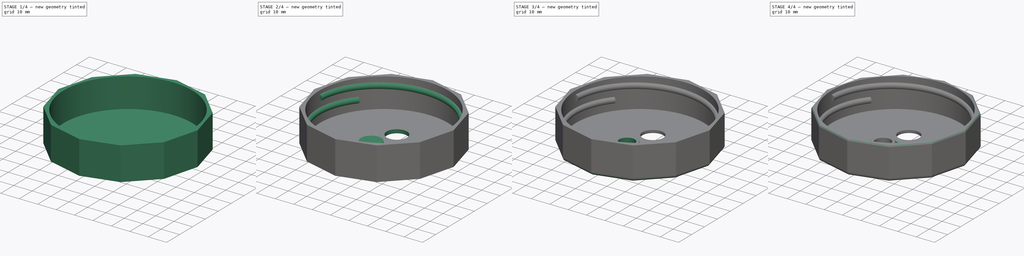
[diagram: build sequence overview — one tinted view per stage of 4, left to right]
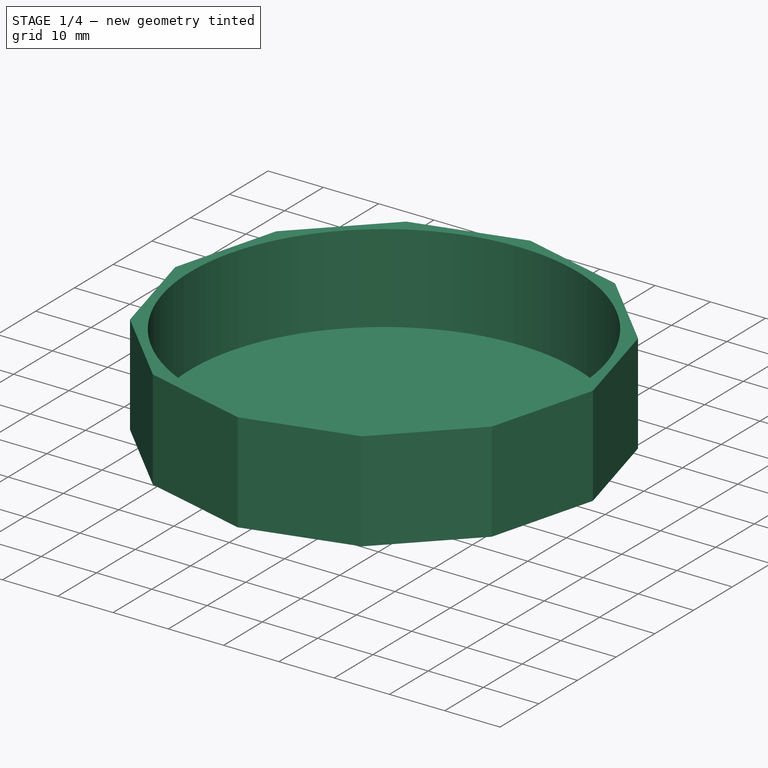
[diagram: stage 1 of 4 — iso view after this stage's code; geometry added in this stage tinted green]
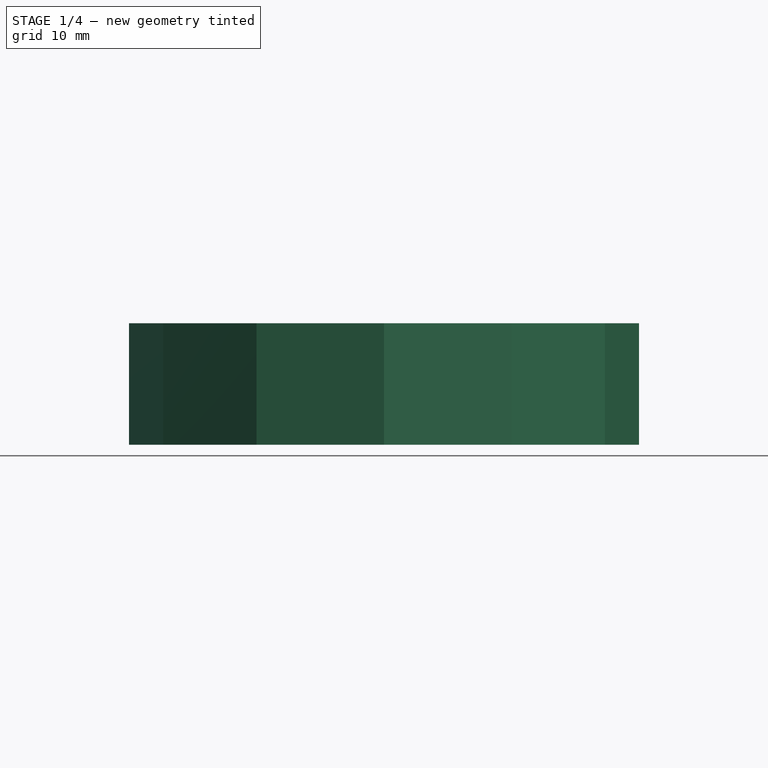
[diagram: stage 1 of 4 — front view after this stage's code; geometry added in this stage tinted green]
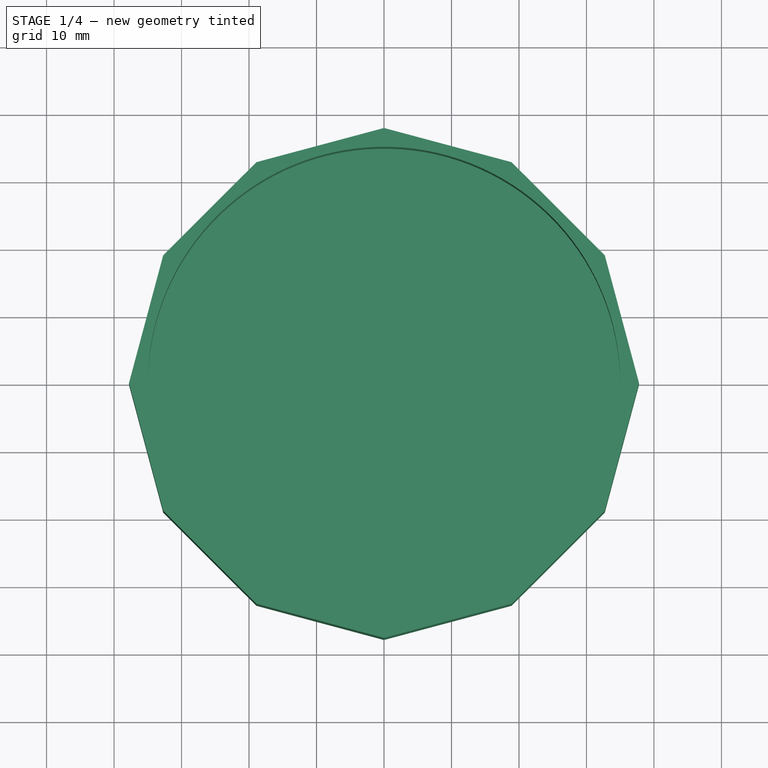
[diagram: stage 1 of 4 — top view after this stage's code; geometry added in this stage tinted green]
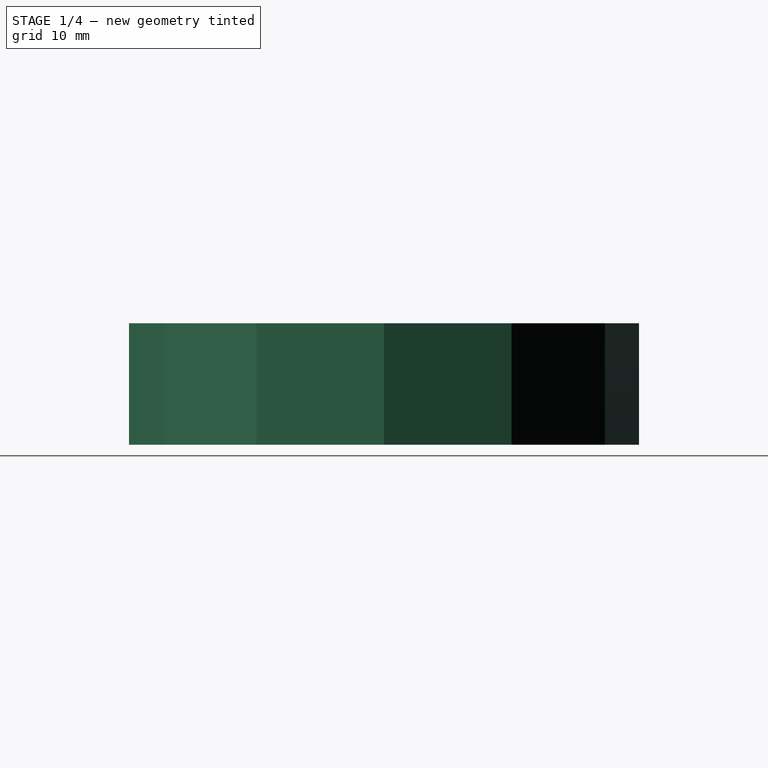
[diagram: stage 1 of 4 — right view after this stage's code; geometry added in this stage tinted green]
FCSTD DOCUMENT  (FreeCAD 2023.131R26244 +5365 (Git))
Label: Mason Jar Culture Lid - Threaded
License: All rights reserved
LicenseURL: http://en.wikipedia.org/wiki/All_rights_reserved
objects: Sketcher::SketchObject×6, PartDesign::Fillet×3, Spreadsheet::Sheet×2, PartDesign::Pad×2, PartDesign::Pocket×2, PartDesign::Hole×1, PartDesign::AdditiveHelix×1, PartDesign::Chamfer×1, PartDesign::Body×1
note: 43 computed .brp shape members not serialized (recipe doc carries the construction recipe); baked Part::Feature solids carry a one-line shape summary decoded from their .brp

FEATURE [Spreadsheet::Sheet] Spreadsheet  label="Parameters"
  PythonMode = false
  ShowCells = 0
  TreeRank = 1
  cells = A2=Ring Inner Diameter; B2(Ring_Inner_Diameter)=70; C2=Should be large enough to fit over the threads on the glass jar.; A3=Ring Min Thickness; B3(Ring_Min_Thickness)=1.5; C3=The thickness of the thinnest part of the ring.; A4=Ring Side Height; B4(Ring_Side_Height)=16; C4=How much material will screw onto the jar.; A5=Ring Top Height; B5(Ring_Top_Height)=2; C5=How thick the lid is on top of the jar.; A7=Thread Pitch; B7(Thread_Pitch)=6.5; C7=The thread pitch.; A8=Thread Width; B8(Thread_Width)=3; C8=The distance between two thread on the jar.; A9=Thread Height; B9(Thread_Height)=3; C9=The height of the threads from the inner survace of the lid.; A10=Thread Offset; B10(Thread_Offset)=2; C10=Distance from the bottom of the ring where the threads start.; A11=Thread Turns; B11(Thread_Turns)=1.1; C11=The number of turns inside the ring.; A13=Hole Fillet; B13(Hole_Fillet)=0.5; A14=Top Fillet; B14(Top_Fillet)=2; A15=Bottom Fillet; B15(Bottom_Fillet)=1; B17=Diameter; C17=Offset; A18=Injection Port Hole Diameter; B18(Injection_Port_Diameter)=11; C18(Injection_Port_Offset)=10; A19=Luer Bulkhead Diameter; B19(Luer_Port_Diameter)=8; C19(Luer_Port_Offset)=10; A21=Bulkhead Geometry; A22=Shaft Length; B22(luer_bulkhead_length)=8.51; A24=Luer Lock Geometry; A25=Center Post Outer Diameter; B25(luer_post_outer_diameter)=3.976; A26=Center Post Inner Diameter; B26(luer_post_inner_diameter)=2.95; A27=Center Post Height; B27(luer_post_height)=6.75; A28=Recess Well Diameter; B28(luer_recess_diameter)=7.9; A29=Recess Well Wall Thickness; B29(luer_recess_thickness)=1.25; A30=Recess Well Height; B30(luer_recess_height)=7.4; A31=Thread Angle; B31(luer_thread_angle)=25; A32=Thread Height; B32(luer_thread_height)=1; A33=Thread Depth; B33(luer_thread_depth)=0.45; A34=Thread Pitch; B34(luer_thread_pitch)=2.5
FEATURE [Sketcher::SketchObject] Sketch
  ArcFitTolerance = 1e-06
  AttachmentSupport = -> [XY_Plane]
  ExternalBSplineMaxDegree = 5
  ExternalBSplineTolerance = 0.0001
  FullyConstrained = true
  InternalTolerance = 1e-06
  InvalidShape = false
  MakeInternals = false
  MapMode = 5
  Support = -> [XY_Plane]
  TreeRank = 14
  ValidateShape = true
  expr: Constraints[37] = <<Parameters>>.Ring_Inner_Diameter + <<Parameters>>.Ring_Min_Thickness * 2
  sketch-geometry (14):
    g0: LineSegment StartX=-32.725 StartY=18.8938 StartZ=0 EndX=-37.7876 EndY=0 EndZ=0
    g1: LineSegment StartX=-37.7876 StartY=0 StartZ=0 EndX=-32.725 EndY=-18.8938 EndZ=0
    g2: LineSegment StartX=-32.725 StartY=-18.8938 StartZ=0 EndX=-18.8938 EndY=-32.725 EndZ=0
    g3: LineSegment StartX=-18.8938 StartY=-32.725 StartZ=0 EndX=3.6e-15 EndY=-37.7876 EndZ=0
    g4: LineSegment StartX=3e-15 StartY=-37.7876 StartZ=0 EndX=18.8938 EndY=-32.725 EndZ=0
    g5: LineSegment StartX=18.8938 StartY=-32.725 StartZ=0 EndX=32.725 EndY=-18.8938 EndZ=0
    g6: LineSegment StartX=32.725 StartY=-18.8938 StartZ=0 EndX=37.7876 EndY=3.6e-15 EndZ=0
    g7: LineSegment StartX=37.7876 StartY=2.3e-15 StartZ=0 EndX=32.725 EndY=18.8938 EndZ=0
    g8: LineSegment StartX=32.725 StartY=18.8938 StartZ=0 EndX=18.8938 EndY=32.725 EndZ=0
    g9: LineSegment StartX=18.8938 StartY=32.725 StartZ=0 EndX=0 EndY=37.7876 EndZ=0
    g10: LineSegment StartX=-6e-16 StartY=37.7876 StartZ=0 EndX=-18.8938 EndY=32.725 EndZ=0
    g11: LineSegment StartX=-18.8938 StartY=32.725 StartZ=0 EndX=-32.725 EndY=18.8938 EndZ=0
    g12: Circle [constr] CenterX=0 CenterY=0 CenterZ=0 NormalX=0 NormalY=0 NormalZ=1 AngleXU=0 Radius=37.7876
    g13: Circle [constr] CenterX=0 CenterY=0 CenterZ=0 NormalX=0 NormalY=0 NormalZ=1 AngleXU=0 Radius=36.5
  constraints (30):
    c: Coincident(g0,g1)
    c: Coincident(g1,g2)
    c: Coincident(g2,g3)
    c: Coincident(g3,g4)
    c: Coincident(g4,g5)
    c: Coincident(g5,g6)
    c: Coincident(g6,g7)
    c: Coincident(g7,g8)
    c: Coincident(g8,g9)
    c: Coincident(g9,g10)
    c: Coincident(g10,g11)
    c: Coincident(g11,g0)
    c: Equal(g0, g1-g11) x11
    c: PointOnObject(g0,g12)
    c: PointOnObject(g1,g12)
    c: PointOnObject(g2,g12)
    c: PointOnObject(g3,g12)
    c: PointOnObject(g4,g12)
    c: PointOnObject(g5,g12)
    c: PointOnObject(g6,g12)
    c: PointOnObject(g7,g12)
    c: PointOnObject(g8,g12)
    c: PointOnObject(g9,g12)
    c: PointOnObject(g10,g12)
    c: PointOnObject(g11,g12)
    c: Coincident(g12,g-1)
    c: Coincident(g13,g12)
    c: Diameter(g13) = 73
    c: Tangent(g13,g9)
    c: PointOnObject(g0,g-1)
FEATURE [PartDesign::Pad] Pad  label="Lid"
  AddSubType = 0
  AlongSketchNormal = false
  AutoTaperInnerAngle = true
  CheckUpToFaceLimits = true
  ClaimChildren = false
  Direction = (0,0,1)
  Fit = 0
  FitJoin = 0
  InnerFit = 0
  InnerFitJoin = 0
  InvalidShape = false
  Length = 18
  Length2 = 100
  Linearize = true
  NewSolid = false
  Profile = -> Sketch
  Suppress = false
  TaperInnerAngle = 0
  TaperInnerAngleRev = 0
  TreeRank = 15
  Type = 0
  ValidateShape = true
  _ProfileBasedVersion = 1
  expr: Length = <<Parameters>>.Ring_Side_Height + <<Parameters>>.Ring_Top_Height
FEATURE [Sketcher::SketchObject] Sketch001  label="Hole"
  ArcFitTolerance = 1e-06
  AttachmentSupport = -> [Pad]
  ExternalBSplineMaxDegree = 5
  ExternalBSplineTolerance = 0.0001
  FullyConstrained = true
  InternalTolerance = 1e-06
  InvalidShape = false
  MakeInternals = false
  MapMode = 5
  Placement = pos=(0,0,18) rot=(0,0,1;0rad)
  Support = -> [Pad]
  TreeRank = 16
  ValidateShape = true
  expr: Constraints[1] = <<Parameters>>.Ring_Inner_Diameter
  sketch-geometry (1):
    g0: Circle CenterX=0 CenterY=0 CenterZ=0 NormalX=0 NormalY=0 NormalZ=1 AngleXU=0 Radius=35
  constraints (2):
    c: Coincident(g0,g-1)
    c: Diameter(g0) = 70
FEATURE [PartDesign::Hole] Hole  label="Bottle Opening"
  AddSubType = 1
  BaseFeature = -> Pad
  ClaimChildren = false
  CustomThreadClearance = 0
  Depth = 16
  DepthType = 0
  Diameter = 70
  DrillForDepth = false
  DrillPoint = 0
  DrillPointAngle = 118
  Fit = 0
  FitJoin = 0
  HoleCutCountersinkAngle = 90
  HoleCutCustomValues = false
  HoleCutDepth = 0
  HoleCutDiameter = 6.1
  HoleCutType = 0
  InnerFit = 0
  InnerFitJoin = 0
  InvalidShape = false
  Linearize = true
  ModelThread = false
  NewSolid = false
  Profile = -> Sketch001
  Suppress = false
  Tapered = false
  TaperedAngle = 90
  ThreadClass = 0
  ThreadDepth = 16
  ThreadDepthType = 0
  ThreadDirection = 0
  ThreadFit = 0
  ThreadSize = 0
  ThreadType = 0
  Threaded = false
  TreeRank = 17
  UseCustomThreadClearance = false
  ValidateShape = true
  _ProfileBasedVersion = 1
  expr: Depth = <<Parameters>>.Ring_Side_Height
  expr: Diameter = <<Parameters>>.Ring_Inner_Diameter
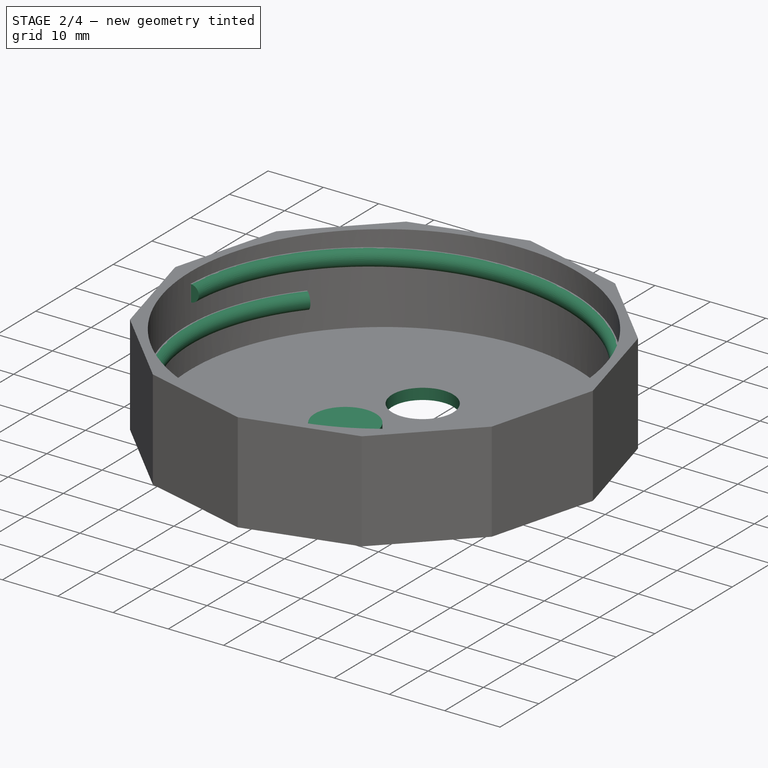
[diagram: stage 2 of 4 — iso view after this stage's code; geometry added in this stage tinted green]
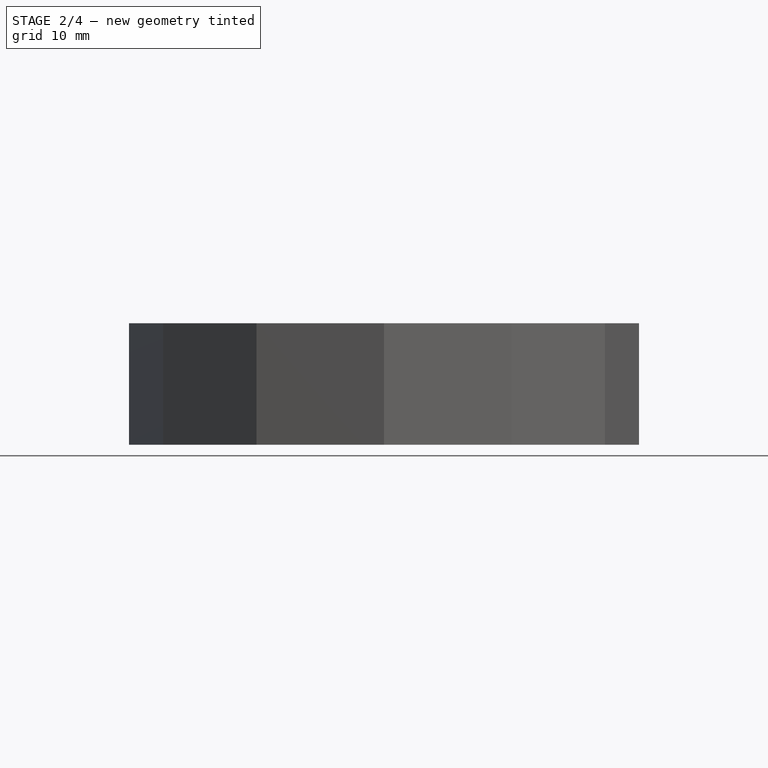
[diagram: stage 2 of 4 — front view after this stage's code; geometry added in this stage tinted green]
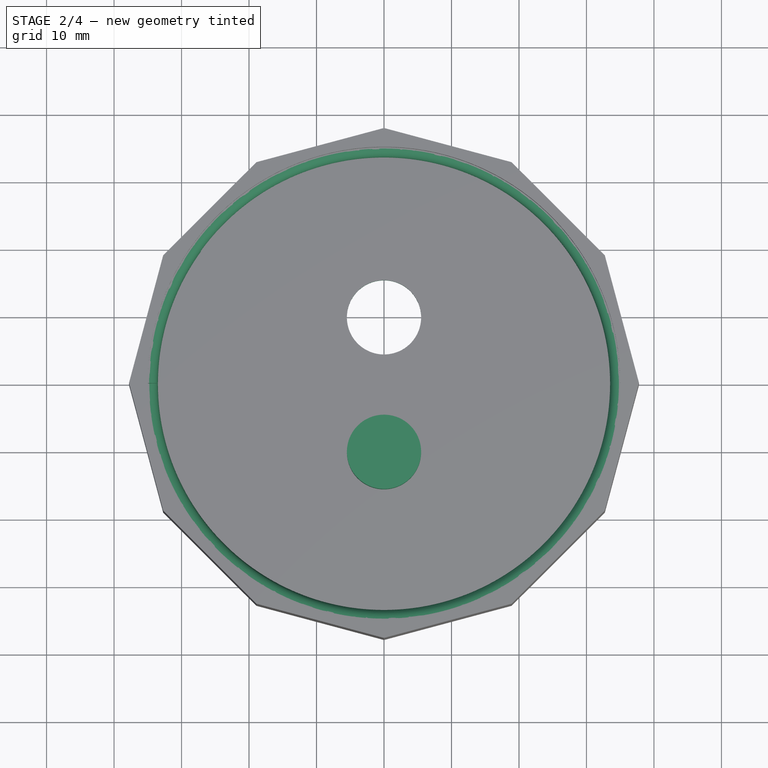
[diagram: stage 2 of 4 — top view after this stage's code; geometry added in this stage tinted green]
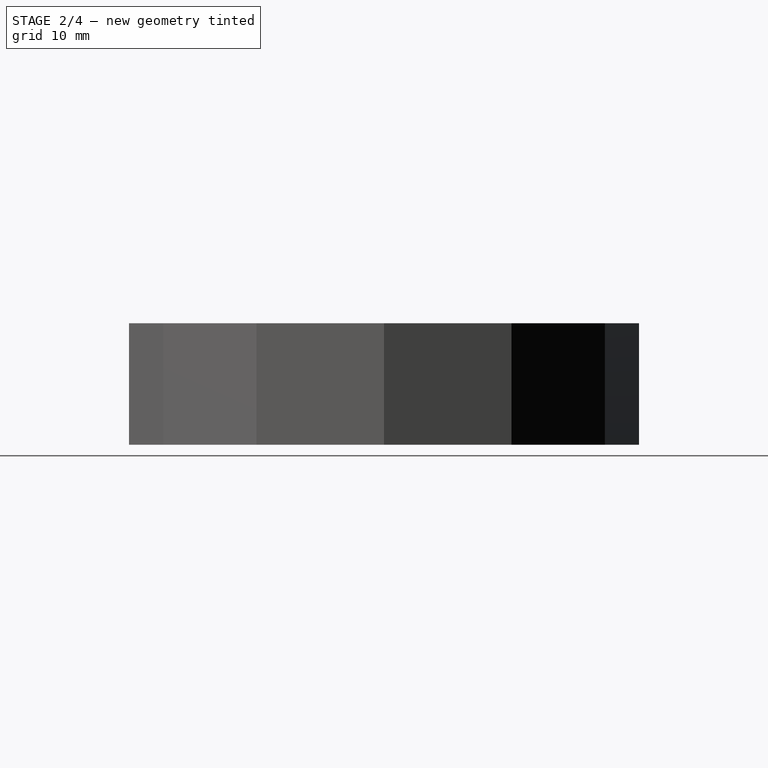
[diagram: stage 2 of 4 — right view after this stage's code; geometry added in this stage tinted green]
FEATURE [Sketcher::SketchObject] Sketch002  label="Thread Profile"
  ArcFitTolerance = 1e-06
  AttachmentSupport = -> [XZ_Plane]
  ExternalBSplineMaxDegree = 5
  ExternalBSplineTolerance = 0.0001
  FullyConstrained = true
  InternalTolerance = 1e-06
  InvalidShape = false
  MakeInternals = false
  MapMode = 5
  Placement = pos=(0,0,0) rot=(1,0,0;1.5708rad)
  Support = -> [XZ_Plane]
  TreeRank = 18
  ValidateShape = true
  expr: Constraints[1] = <<Parameters>>.Thread_Width
  expr: Constraints[2] = <<Parameters>>.Ring_Side_Height + <<Parameters>>.Ring_Top_Height - <<Parameters>>.Thread_Offset
  expr: Constraints[3] = <<Parameters>>.Ring_Inner_Diameter / 2
  expr: Constraints[6] = <<Parameters>>.Thread_Width
  sketch-geometry (2):
    g0: LineSegment StartX=-35 StartY=13 StartZ=0 EndX=-35 EndY=16 EndZ=0
    g1: ArcOfCircle CenterX=-35 CenterY=14.5 CenterZ=0 NormalX=0 NormalY=0 NormalZ=1 AngleXU=0 Radius=1.5 StartAngle=4.71238 EndAngle=7.85399
  constraints (7):
    c: Vertical(g0)
    c: Distance(g0,g0) = 3
    c: DistanceY(g-1,g0) = 16
    c: DistanceX(g0,g-1) = 35
    c: Coincident(g1,g0)
    c: Coincident(g1,g0)
    c: Diameter(g1) = 3
FEATURE [PartDesign::AdditiveHelix] Helix  label="Threads"
  AddSubType = 0
  Angle = 0
  Axis = (0,-2e-16,1)
  Base = (0,0,0)
  BaseFeature = -> Hole
  ClaimChildren = false
  Fit = 0
  FitJoin = 0
  Growth = 0
  HasBeenEdited = true
  Height = 7.15
  InnerFit = 0
  InnerFitJoin = 0
  InvalidShape = false
  LeftHanded = false
  Linearize = true
  Mode = 1
  NewSolid = false
  Outside = false
  Pitch = 6.5
  Profile = -> Sketch002
  ReferenceAxis = -> Sketch002 [V_Axis]
  Reversed = true
  Suppress = false
  TreeRank = 19
  Turns = 1.1
  ValidateShape = true
  _ProfileBasedVersion = 1
  expr: Pitch = <<Parameters>>.Thread_Pitch
  expr: Turns = <<Parameters>>.Thread_Turns
FEATURE [Spreadsheet::Sheet] Spreadsheet001  label="Bootle Specs"
  PythonMode = false
  ShowCells = 0
  TreeRank = 2
  cells = B2=Inner Ring Diameter; C2=Ring Side Height; D2=Thread Pitch; E2=Thread Width; A3=Large Mouth Mason Jar; B3=87; C3=16; D3=6.5; E3=3; A4=Narrow Mouth Mason Jar; B4=70; C4=16; D4=6.5; E4=3; A5=24oz Prego Jar; B5=62.25; C5=10.5; D5=3; E5=1
FEATURE [Sketcher::SketchObject] Sketch003
  ArcFitTolerance = 1e-06
  AttachmentSupport = -> [XY_Plane]
  ExternalBSplineMaxDegree = 5
  ExternalBSplineTolerance = 0.0001
  FullyConstrained = true
  InternalTolerance = 1e-06
  InvalidShape = false
  MakeInternals = false
  MapMode = 5
  Support = -> [XY_Plane]
  TreeRank = 21
  ValidateShape = true
  expr: Constraints[1] = <<Parameters>>.Injection_Port_Diameter
  expr: Constraints[2] = <<Parameters>>.Injection_Port_Offset
  sketch-geometry (1):
    g0: Circle CenterX=0 CenterY=10 CenterZ=0 NormalX=0 NormalY=0 NormalZ=1 AngleXU=0 Radius=5.5
  constraints (3):
    c: PointOnObject(g0,g-2)
    c: Diameter(g0) = 11
    c: DistanceY(g-1,g0) = 10
FEATURE [PartDesign::Pocket] Pocket  label="Injection Port Hole"
  AddSubType = 1
  AutoTaperInnerAngle = true
  BaseFeature = -> Helix
  CheckUpToFaceLimits = true
  ClaimChildren = false
  Fit = 0
  FitJoin = 0
  InnerFit = 0
  InnerFitJoin = 0
  InvalidShape = false
  Length = 100
  Length2 = 100
  Linearize = true
  NewSolid = false
  Profile = -> Sketch003
  Suppress = false
  TaperInnerAngle = 0
  TaperInnerAngleRev = 0
  TreeRank = 22
  Type = 4
  ValidateShape = true
  _ProfileBasedVersion = 1
  _Version = 1
FEATURE [Sketcher::SketchObject] Sketch010
  ArcFitTolerance = 1e-06
  AttachmentSupport = -> [XY_Plane]
  ExternalBSplineMaxDegree = 5
  ExternalBSplineTolerance = 0.0001
  FullyConstrained = true
  InternalTolerance = 1e-06
  InvalidShape = false
  MakeInternals = false
  MapMode = 5
  Support = -> [XY_Plane]
  TreeRank = 47
  ValidateShape = true
  expr: Constraints[1] = <<Parameters>>.Luer_Port_Offset
  expr: Constraints[2] = <<Parameters>>.Ring_Min_Thickness * 2 + <<Parameters>>.Luer_Port_Diameter
  sketch-geometry (1):
    g0: Circle CenterX=0 CenterY=-10 CenterZ=0 NormalX=0 NormalY=0 NormalZ=1 AngleXU=0 Radius=5.5
  constraints (3):
    c: PointOnObject(g0,g-2)
    c: DistanceY(g0,g-1) = 10
    c: Diameter(g0) = 11
FEATURE [PartDesign::Pad] Pad004
  AddSubType = 0
  AlongSketchNormal = false
  AutoTaperInnerAngle = true
  BaseFeature = -> Pocket
  CheckUpToFaceLimits = true
  ClaimChildren = false
  Direction = (0,0,1)
  Fit = 0
  FitJoin = 0
  InnerFit = 0
  InnerFitJoin = 0
  InvalidShape = false
  Length = 6.51
  Length2 = 100
  Linearize = true
  NewSolid = false
  Profile = -> Sketch010
  Suppress = false
  TaperInnerAngle = 0
  TaperInnerAngleRev = 0
  TreeRank = 48
  Type = 0
  ValidateShape = true
  _ProfileBasedVersion = 1
  expr: Length = <<Parameters>>.luer_bulkhead_length - <<Parameters>>.Ring_Top_Height
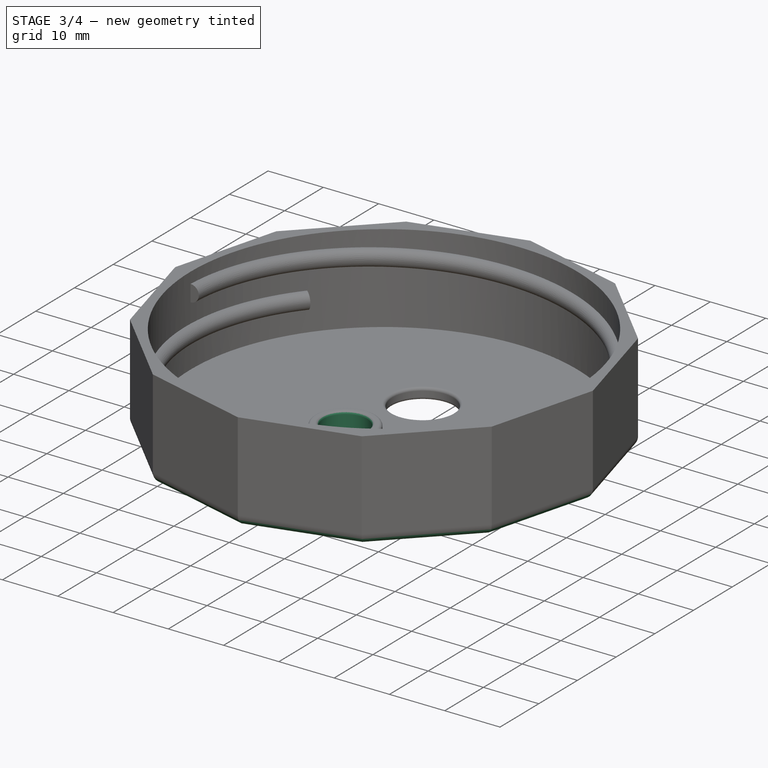
[diagram: stage 3 of 4 — iso view after this stage's code; geometry added in this stage tinted green]
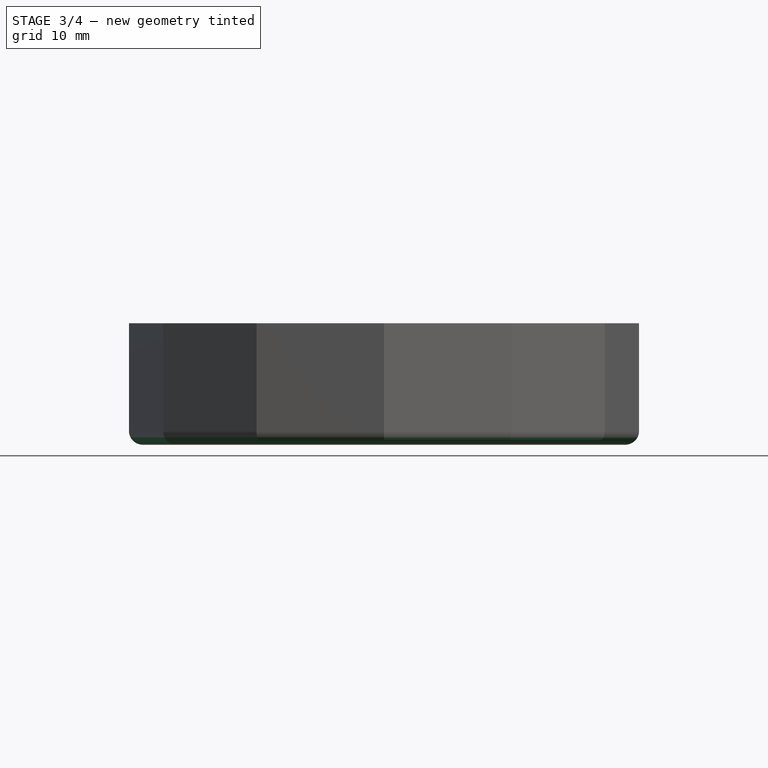
[diagram: stage 3 of 4 — front view after this stage's code; geometry added in this stage tinted green]
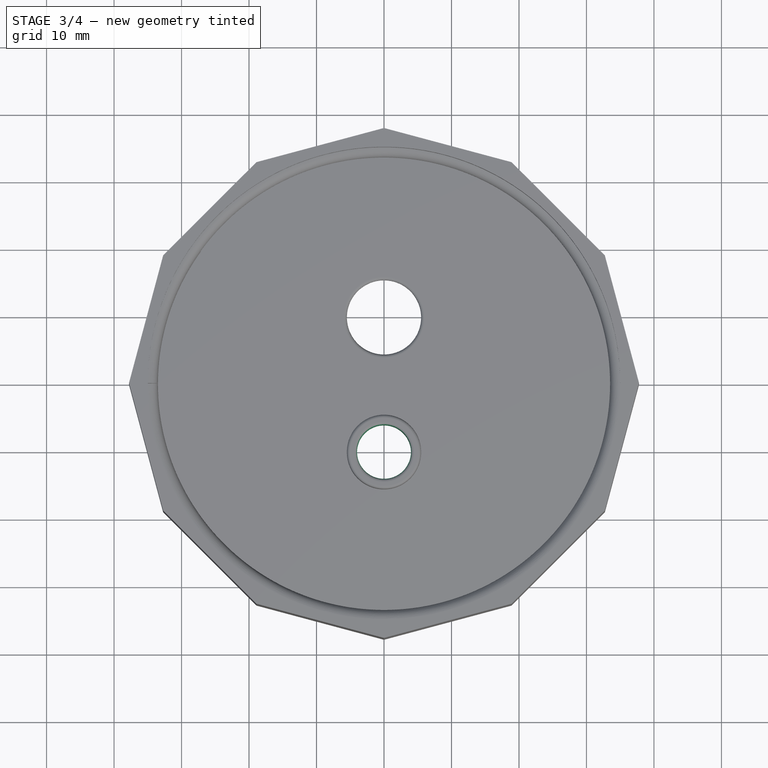
[diagram: stage 3 of 4 — top view after this stage's code; geometry added in this stage tinted green]
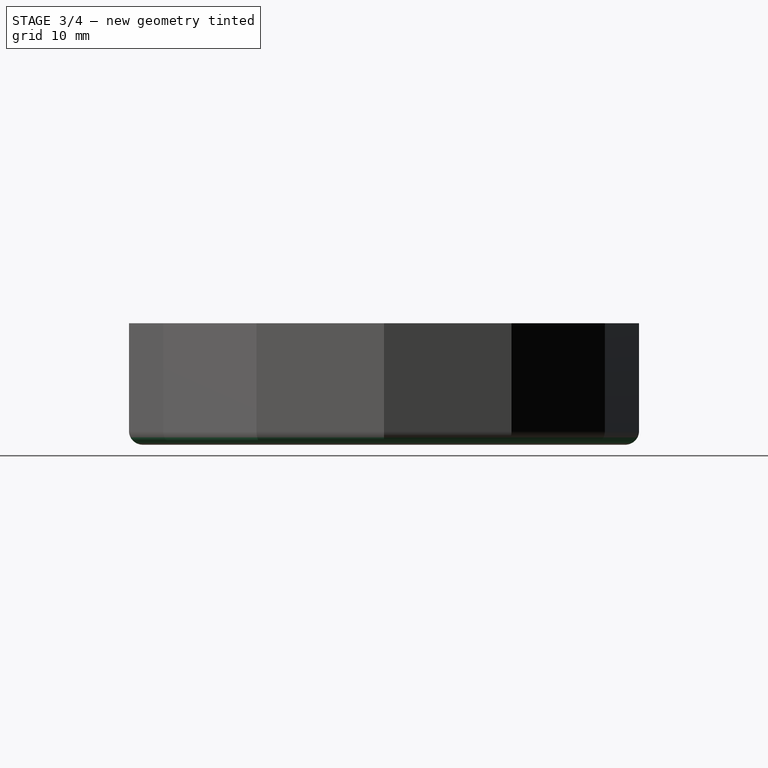
[diagram: stage 3 of 4 — right view after this stage's code; geometry added in this stage tinted green]
FEATURE [Sketcher::SketchObject] Sketch011
  ArcFitTolerance = 1e-06
  AttachmentSupport = -> [XY_Plane]
  ExternalBSplineMaxDegree = 5
  ExternalBSplineTolerance = 0.0001
  FullyConstrained = true
  InternalTolerance = 1e-06
  InvalidShape = false
  MakeInternals = false
  MapMode = 5
  Support = -> [XY_Plane]
  TreeRank = 49
  ValidateShape = true
  expr: Constraints[1] = <<Parameters>>.Luer_Port_Offset
  expr: Constraints[2] = <<Parameters>>.Luer_Port_Diameter
  sketch-geometry (1):
    g0: Circle CenterX=0 CenterY=-10 CenterZ=0 NormalX=0 NormalY=0 NormalZ=1 AngleXU=0 Radius=4
  constraints (3):
    c: PointOnObject(g0,g-2)
    c: DistanceY(g0,g-1) = 10
    c: Diameter(g0) = 8
FEATURE [PartDesign::Pocket] Pocket003
  AddSubType = 1
  AutoTaperInnerAngle = true
  BaseFeature = -> Pad004
  CheckUpToFaceLimits = true
  ClaimChildren = false
  Fit = 0
  FitJoin = 0
  InnerFit = 0
  InnerFitJoin = 0
  InvalidShape = false
  Length = 100
  Length2 = 100
  Linearize = true
  NewSolid = false
  Profile = -> Sketch011
  Suppress = false
  TaperInnerAngle = 0
  TaperInnerAngleRev = 0
  TreeRank = 52
  Type = 4
  ValidateShape = true
  _ProfileBasedVersion = 1
  _Version = 1
FEATURE [PartDesign::Fillet] Fillet
  AddSubType = 0
  Base = -> Pocket003 [Edge21,Edge41,Edge40,Edge54,Edge60]
  BaseFeature = -> Pocket003
  InvalidShape = false
  NewSolid = false
  Radius = 0.5
  SupportTransform = false
  Suppress = false
  TreeRank = 53
  ValidateShape = true
  expr: Radius = <<Parameters>>.Hole_Fillet
FEATURE [PartDesign::Fillet] Fillet001
  AddSubType = 0
  Base = -> Fillet [Face1]
  BaseFeature = -> Fillet
  InvalidShape = false
  NewSolid = false
  Radius = 2
  SupportTransform = false
  Suppress = false
  TreeRank = 54
  ValidateShape = true
  expr: Radius = <<Parameters>>.Top_Fillet
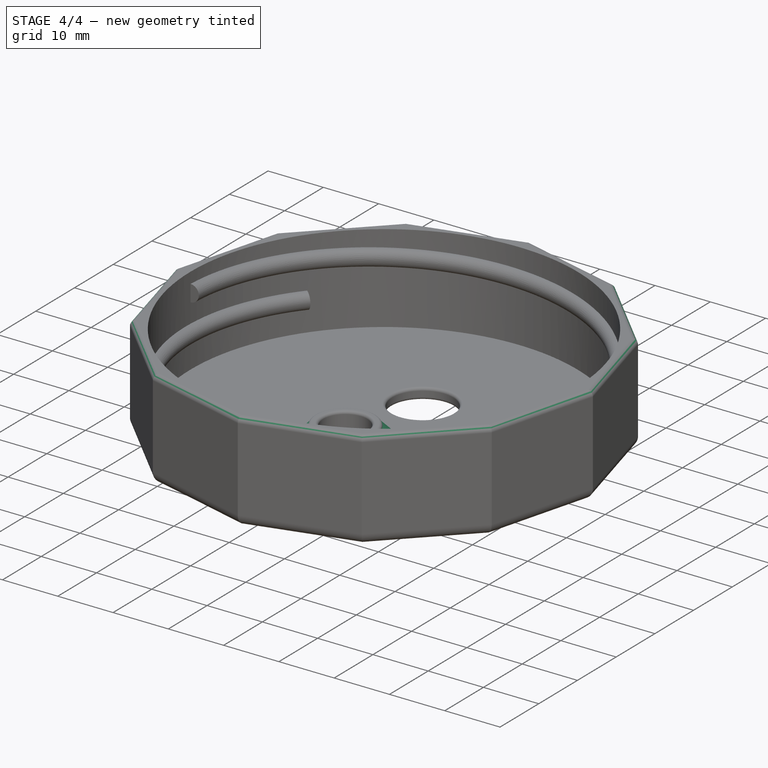
[diagram: stage 4 of 4 — iso view after this stage's code; geometry added in this stage tinted green]
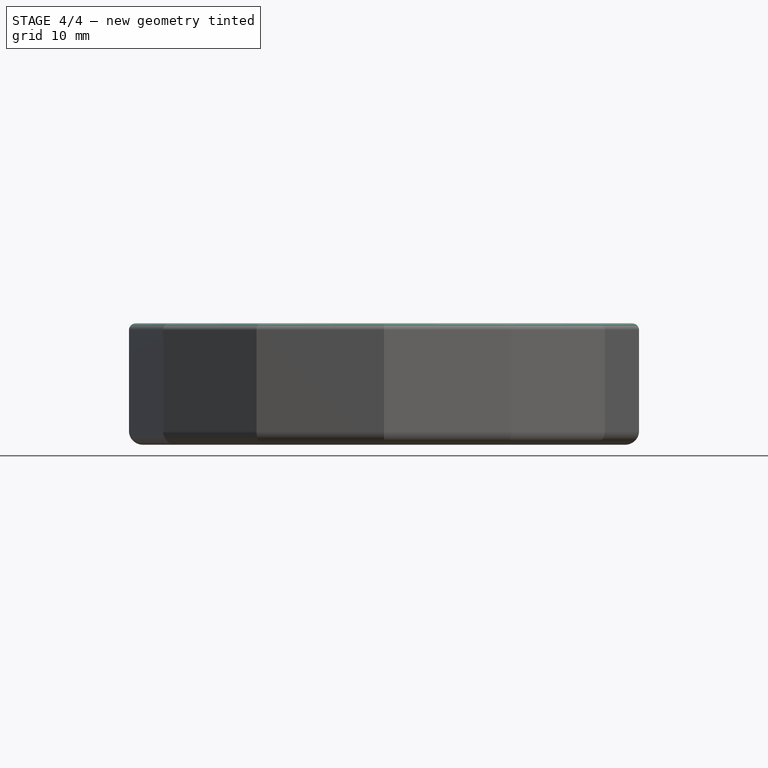
[diagram: stage 4 of 4 — front view after this stage's code; geometry added in this stage tinted green]
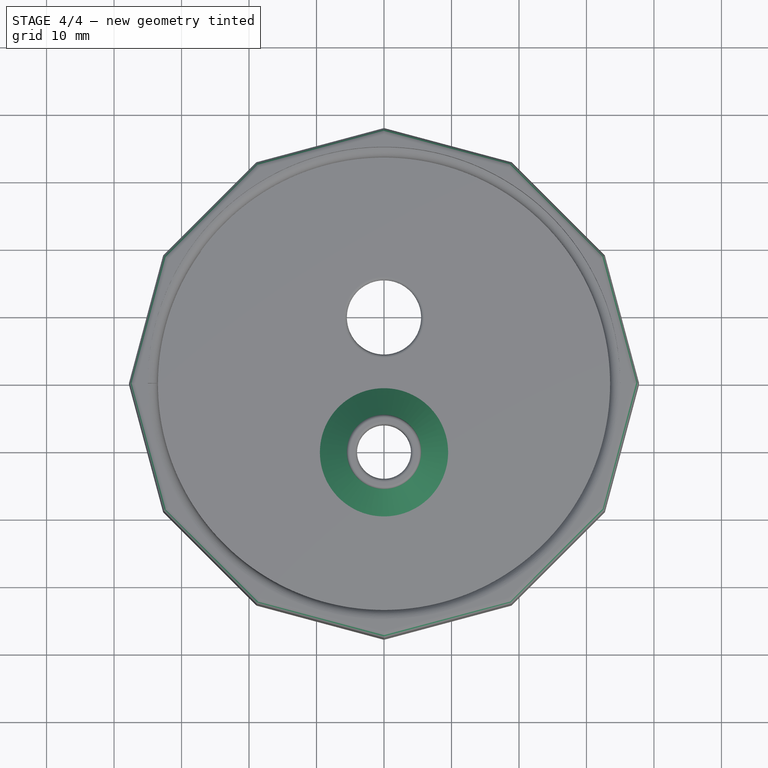
[diagram: stage 4 of 4 — top view after this stage's code; geometry added in this stage tinted green]
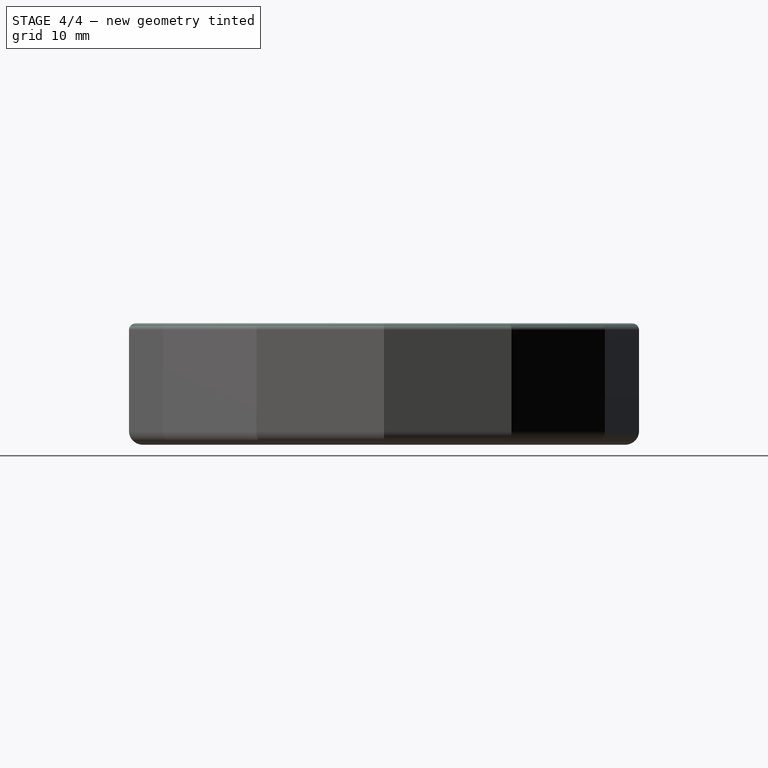
[diagram: stage 4 of 4 — right view after this stage's code; geometry added in this stage tinted green]
FEATURE [PartDesign::Fillet] Fillet002
  AddSubType = 0
  Base = -> Fillet001 [Edge43,Edge46,Edge50,Edge54,Edge58,Edge62,Edge65,Edge63,Edge59,Edge55,Edge51,Edge47]
  BaseFeature = -> Fillet001
  InvalidShape = false
  NewSolid = false
  Radius = 1
  SupportTransform = false
  Suppress = false
  TreeRank = 55
  ValidateShape = true
  expr: Radius = <<Parameters>>.Bottom_Fillet
FEATURE [PartDesign::Chamfer] Chamfer
  AddSubType = 0
  Angle = 45
  Base = -> Fillet002 [Edge105]
  BaseFeature = -> Fillet002
  ChamferType = 0
  FlipDirection = false
  InvalidShape = false
  NewSolid = false
  Size = 4
  Size2 = 1
  SupportTransform = false
  Suppress = false
  TreeRank = 56
  ValidateShape = true
FEATURE [PartDesign::Body] Body  label="LidBody"
  AutoGroupSolids = false
  ClaimAllChildren = false
  ExportMode = 0
  Group = -> [Sketch,Pad,Sketch001,Hole,Sketch002,Helix,Sketch003,Pocket,Pad004,Sketch010,Pocket003,Fillet,Fillet001,Fillet002,Chamfer,Sketch011]
  InvalidShape = false
  Origin = -> Origin
  Tip = -> Chamfer
  TreeRank = 13
  ValidateShape = true
  _ExportChildren = -> [Pad,Hole,Helix,Pocket,Pad004,Pocket003,Fillet,Fillet001,Fillet002,Chamfer]
  _GroupVersion = 1
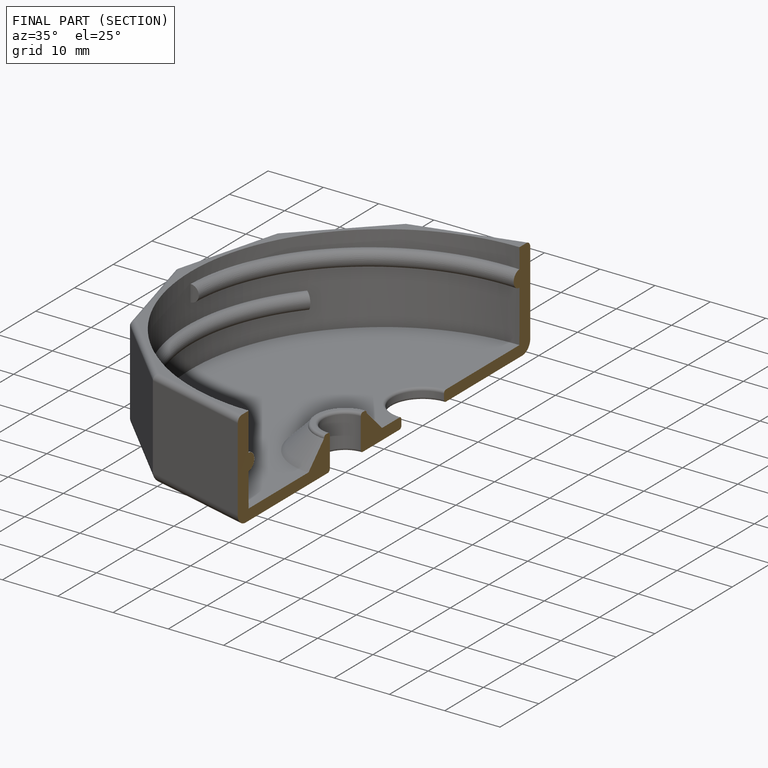
[diagram: finished part — half-section view (interior)]
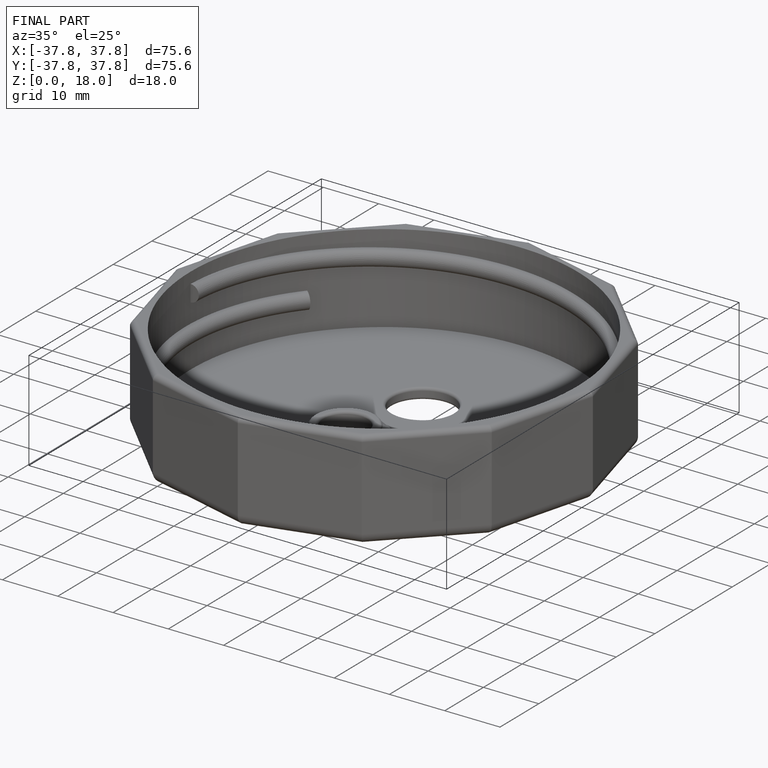
[diagram: finished part — iso view with bounding-box wireframe]
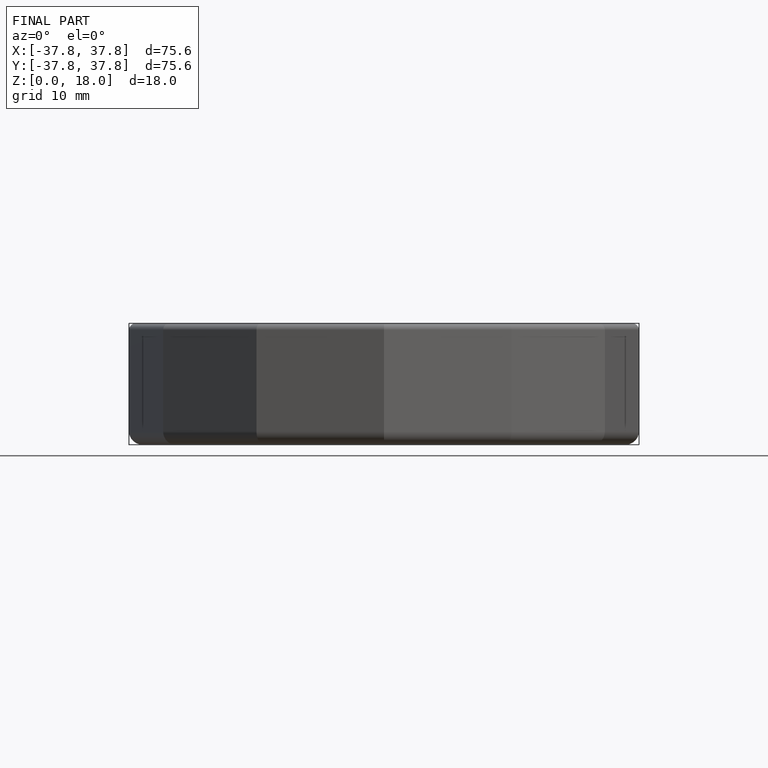
[diagram: finished part — front view with bounding-box wireframe]
